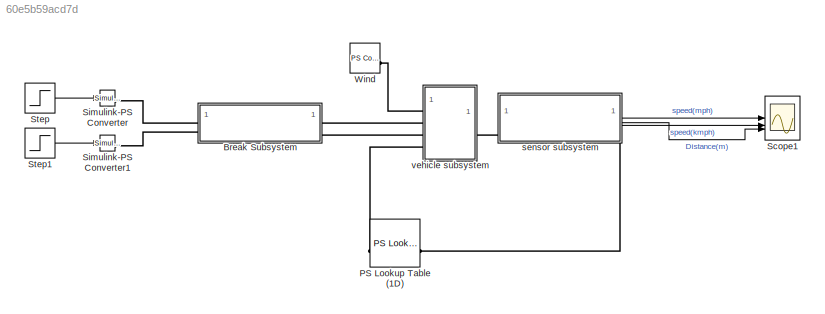
MODEL slx_60e5b59acd7d
KIND model
CONFIG AbsTol = 1e-3
CONFIG EnableMultiTasking = off
CONFIG FixedStep = auto
CONFIG MaxStep = auto
CONFIG MinStep = auto
CONFIG PreLoadFcn = load terrain_data.mat\ncar_tire_data
CONFIG RelTol = 1e-3
CONFIG SampleTimeConstraint = Unconstrained
CONFIG SolverName = ode23t
CONFIG StartTime = 0.0
CONFIG StopTime = 300
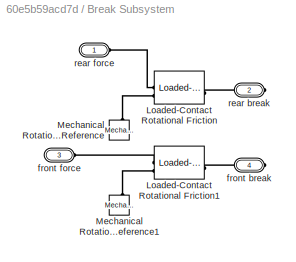
BLOCK [SubSystem] Break Subsystem
BLOCK [Reference] Break Subsystem/Loaded-Contact Rotational Friction  REF=sdl_lib/Brakes & Detents/Rotational/Loaded-Contact
Rotational Friction
  SourceBlock = sdl_lib/Brakes & Detents/Rotational/Loaded-Contact\nRotational Friction
  SourceType = Loaded-Contact\nRotational Friction
BLOCK [Reference] Break Subsystem/Loaded-Contact Rotational Friction1  REF=sdl_lib/Brakes & Detents/Rotational/Loaded-Contact
Rotational Friction
  SourceBlock = sdl_lib/Brakes & Detents/Rotational/Loaded-Contact\nRotational Friction
  SourceType = Loaded-Contact\nRotational Friction
BLOCK [Reference] Break Subsystem/Mechanical Rotational Reference  REF=fl_lib/Mechanical/Rotational Elements/Mechanical
Rotational Reference
  NameLocation = right
  SourceBlock = fl_lib/Mechanical/Rotational Elements/Mechanical\nRotational Reference
  SourceType = Mechanical\nRotational Reference
BLOCK [Reference] Break Subsystem/Mechanical Rotational Reference1  REF=fl_lib/Mechanical/Rotational Elements/Mechanical
Rotational Reference
  NameLocation = right
  SourceBlock = fl_lib/Mechanical/Rotational Elements/Mechanical\nRotational Reference
  SourceType = Mechanical\nRotational Reference
BLOCK [PMIOPort] Break Subsystem/front break
  Port = 4
  Side = Right
BLOCK [PMIOPort] Break Subsystem/front force
  Port = 3
  Side = Left
BLOCK [PMIOPort] Break Subsystem/rear break
  Port = 2
  Side = Right
BLOCK [PMIOPort] Break Subsystem/rear force
  Side = Left
BLOCK [Reference] PS Lookup Table (1D)  REF=fl_lib/Physical Signals/Lookup Tables/PS Lookup Table (1D)
  SourceBlock = fl_lib/Physical Signals/Lookup Tables/PS Lookup Table (1D)
  SourceType = PS Lookup Table (1D)
BLOCK [Scope] Scope1
  Floating = off
  NumInputPorts = 3
  ScopeSpecificationString = Simulink.scopes.TimeScopeBlockCfg('CurrentConfiguration', extmgr.ConfigurationSet(extmgr.Configuration('Core','General UI',true),extmgr.Configuration('Core','Source UI',true),extmgr.Configuration('Sources','WiredSimulink',true,'DataLoggingVariableName','ScopeData1'),extmgr.Configuration('Visuals','Time Domain',true,'SerializedDisplays',{struct('MinYLimReal','-0.46969','MaxYLimReal','4.22721','YLab...<+2803ch>
BLOCK [Reference] Simulink-PS Converter  REF=nesl_utility/Simulink-PS
Converter
  SourceBlock = nesl_utility/Simulink-PS\nConverter
  SourceType = Simulink-PS\nConverter
BLOCK [Reference] Simulink-PS Converter1  REF=nesl_utility/Simulink-PS
Converter
  SourceBlock = nesl_utility/Simulink-PS\nConverter
  SourceType = Simulink-PS\nConverter
BLOCK [Step] Step
  After = 100
  AttributesFormatString = %<After>N at %<Time>s
  SampleTime = 0
  Time = 20
BLOCK [Step] Step1
  After = 200
  AttributesFormatString = %<After>N at %<Time>s
  SampleTime = 0
  Time = 25
BLOCK [Reference] Wind  REF=fl_lib/Physical Signals/Sources/PS Constant
  SourceBlock = fl_lib/Physical Signals/Sources/PS Constant
  SourceType = PS Constant
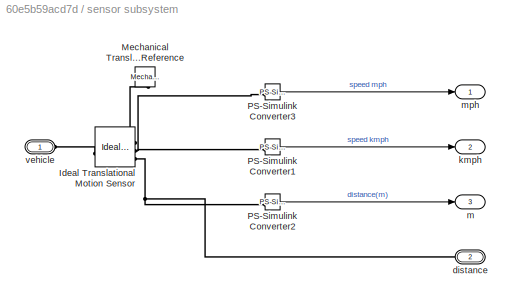
BLOCK [SubSystem] sensor subsystem
BLOCK [Outport] sensor subsystem/ kmph
  Port = 2
BLOCK [Outport] sensor subsystem/ mph
BLOCK [Reference] sensor subsystem/Ideal Translational Motion Sensor  REF=fl_lib/Mechanical/Mechanical Sensors/Ideal Translational
Motion Sensor
  SourceBlock = fl_lib/Mechanical/Mechanical Sensors/Ideal Translational\nMotion Sensor
  SourceType = Ideal Translational\nMotion Sensor
BLOCK [Reference] sensor subsystem/Mechanical Translational Reference  REF=fl_lib/Mechanical/Translational
Elements/Mechanical
Translational
Reference
  NameLocation = left
  SourceBlock = fl_lib/Mechanical/Translational\nElements/Mechanical\nTranslational\nReference
  SourceType = Mechanical\nTranslational\nReference
BLOCK [Reference] sensor subsystem/PS-Simulink Converter1  REF=nesl_utility/PS-Simulink
Converter
  SourceBlock = nesl_utility/PS-Simulink\nConverter
  SourceType = PS-Simulink\nConverter
BLOCK [Reference] sensor subsystem/PS-Simulink Converter2  REF=nesl_utility/PS-Simulink
Converter
  SourceBlock = nesl_utility/PS-Simulink\nConverter
  SourceType = PS-Simulink\nConverter
BLOCK [Reference] sensor subsystem/PS-Simulink Converter3  REF=nesl_utility/PS-Simulink
Converter
  SourceBlock = nesl_utility/PS-Simulink\nConverter
  SourceType = PS-Simulink\nConverter
BLOCK [PMIOPort] sensor subsystem/distance
  Port = 2
  Side = Right
BLOCK [Outport] sensor subsystem/m
  Port = 3
BLOCK [PMIOPort] sensor subsystem/vehicle
  Side = Left
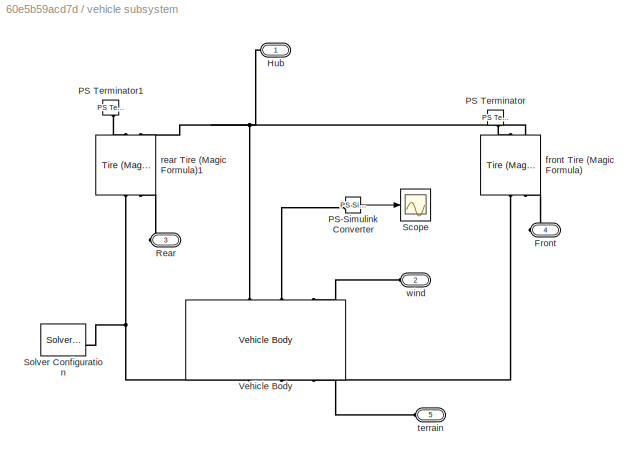
BLOCK [SubSystem] vehicle subsystem
BLOCK [PMIOPort] vehicle subsystem/Front
  Port = 4
  Side = Left
BLOCK [PMIOPort] vehicle subsystem/Hub
  Side = Right
BLOCK [Reference] vehicle subsystem/PS Terminator  REF=fl_lib/Physical Signals/Sinks/PS Terminator
  NameLocation = right
  SourceBlock = fl_lib/Physical Signals/Sinks/PS Terminator
  SourceType = PS Terminator
BLOCK [Reference] vehicle subsystem/PS Terminator1  REF=fl_lib/Physical Signals/Sinks/PS Terminator
  NameLocation = right
  SourceBlock = fl_lib/Physical Signals/Sinks/PS Terminator
  SourceType = PS Terminator
BLOCK [Reference] vehicle subsystem/PS-Simulink Converter  REF=nesl_utility/PS-Simulink
Converter
  SourceBlock = nesl_utility/PS-Simulink\nConverter
  SourceType = PS-Simulink\nConverter
BLOCK [PMIOPort] vehicle subsystem/Rear
  Port = 3
  Side = Left
BLOCK [Scope] vehicle subsystem/Scope
  Floating = off
  NumInputPorts = 1
  ScopeSpecificationString = Simulink.scopes.TimeScopeBlockCfg('CurrentConfiguration', extmgr.ConfigurationSet(extmgr.Configuration('Core','General UI',true),extmgr.Configuration('Core','Source UI',true),extmgr.Configuration('Sources','WiredSimulink',true),extmgr.Configuration('Visuals','Time Domain',true,'SerializedDisplays',{struct('MinYLimReal','-0.20997','MaxYLimReal','1.88973','YLabelReal','','MinYLimMag','0.00000','MaxY...<+1341ch>
BLOCK [Reference] vehicle subsystem/Solver Configuration  REF=nesl_utility/Solver
Configuration
  SourceBlock = nesl_utility/Solver\nConfiguration
  SourceType = Solver\nConfiguration
BLOCK [Reference] vehicle subsystem/Vehicle Body  REF=sdl_lib/Tires & Vehicles/Vehicle Body
  NameLocation = right
  SourceBlock = sdl_lib/Tires & Vehicles/Vehicle Body
  SourceType = Vehicle Body
BLOCK [Reference] vehicle subsystem/front Tire (Magic Formula)  REF=sdl_lib/Tires & Vehicles/Tire (Magic Formula)
  NameLocation = right
  SourceBlock = sdl_lib/Tires & Vehicles/Tire (Magic Formula)
  SourceType = Tire (Magic Formula)
BLOCK [Reference] vehicle subsystem/rear Tire (Magic Formula)1  REF=sdl_lib/Tires & Vehicles/Tire (Magic Formula)
  NameLocation = right
  SourceBlock = sdl_lib/Tires & Vehicles/Tire (Magic Formula)
  SourceType = Tire (Magic Formula)
BLOCK [PMIOPort] vehicle subsystem/terrain
  Port = 5
  Side = Left
BLOCK [PMIOPort] vehicle subsystem/wind
  Port = 2
  Side = Left
LINE Step1:1 -> Simulink-PS Converter1:1
LINE Step:1 -> Simulink-PS Converter:1
LINE sensor subsystem/PS-Simulink Converter1:1 -> sensor subsystem/ kmph:1
LINE sensor subsystem/PS-Simulink Converter2:1 -> sensor subsystem/m:1
LINE sensor subsystem/PS-Simulink Converter3:1 -> sensor subsystem/ mph:1
LINE sensor subsystem:1 -> Scope1:1
LINE sensor subsystem:2 -> Scope1:2
LINE sensor subsystem:3 -> Scope1:3
LINE vehicle subsystem/PS-Simulink Converter:1 -> vehicle subsystem/Scope:1
PLINE Break Subsystem/Loaded-Contact Rotational Friction1:LConn1 -- Break Subsystem/front force:RConn1
PLINE Break Subsystem/Loaded-Contact Rotational Friction1:LConn2 -- Break Subsystem/Mechanical Rotational Reference1:LConn1
PLINE Break Subsystem/Loaded-Contact Rotational Friction1:RConn1 -- Break Subsystem/front break:RConn1
PLINE Break Subsystem/Loaded-Contact Rotational Friction:LConn1 -- Break Subsystem/rear force:RConn1
PLINE Break Subsystem/Loaded-Contact Rotational Friction:LConn2 -- Break Subsystem/Mechanical Rotational Reference:LConn1
PLINE Break Subsystem/Loaded-Contact Rotational Friction:RConn1 -- Break Subsystem/rear break:RConn1
PLINE Break Subsystem:LConn1 -- Simulink-PS Converter:RConn1
PLINE Break Subsystem:LConn2 -- Simulink-PS Converter1:RConn1
PLINE Break Subsystem:RConn1 -- vehicle subsystem:LConn2
PLINE Break Subsystem:RConn2 -- vehicle subsystem:LConn3
PLINE PS Lookup Table (1D):LConn1 -- sensor subsystem:RConn1
PLINE PS Lookup Table (1D):RConn1 -- vehicle subsystem:LConn4
PLINE Wind:RConn1 -- vehicle subsystem:LConn1
PLINE sensor subsystem/Ideal Translational Motion Sensor:LConn1 -- sensor subsystem/vehicle:RConn1
PLINE sensor subsystem/Ideal Translational Motion Sensor:RConn1 -- sensor subsystem/Mechanical Translational Reference:LConn1
PNET net1: sensor subsystem/Ideal Translational Motion Sensor:RConn2 -- sensor subsystem/PS-Simulink Converter1:LConn1 -- sensor subsystem/PS-Simulink Converter3:LConn1
PNET net2: sensor subsystem/Ideal Translational Motion Sensor:RConn3 -- sensor subsystem/PS-Simulink Converter2:LConn1 -- sensor subsystem/distance:RConn1
PLINE sensor subsystem:LConn1 -- vehicle subsystem:RConn1
PLINE vehicle subsystem/Front:RConn1 -- vehicle subsystem/front Tire (Magic Formula):LConn2
PNET net3: vehicle subsystem/Hub:RConn1 -- vehicle subsystem/Vehicle Body:LConn1 -- vehicle subsystem/front Tire (Magic Formula):RConn2 -- vehicle subsystem/rear Tire (Magic Formula)1:RConn2
PLINE vehicle subsystem/PS Terminator1:LConn1 -- vehicle subsystem/rear Tire (Magic Formula)1:RConn1
PLINE vehicle subsystem/PS Terminator:LConn1 -- vehicle subsystem/front Tire (Magic Formula):RConn1
PLINE vehicle subsystem/PS-Simulink Converter:LConn1 -- vehicle subsystem/Vehicle Body:LConn2
PLINE vehicle subsystem/Rear:RConn1 -- vehicle subsystem/rear Tire (Magic Formula)1:LConn2
PNET net4: vehicle subsystem/Solver Configuration:RConn1 -- vehicle subsystem/Vehicle Body:RConn1 -- vehicle subsystem/rear Tire (Magic Formula)1:LConn1
PLINE vehicle subsystem/Vehicle Body:LConn3 -- vehicle subsystem/wind:RConn1
PLINE vehicle subsystem/Vehicle Body:RConn2 -- vehicle subsystem/front Tire (Magic Formula):LConn1
PLINE vehicle subsystem/Vehicle Body:RConn3 -- vehicle subsystem/terrain:RConn1
note: PNET lines group multi-terminal physical nets as a canonical sorted terminal list (undirected conserving connections); 2-terminal nets keep the pairwise PLINE form
